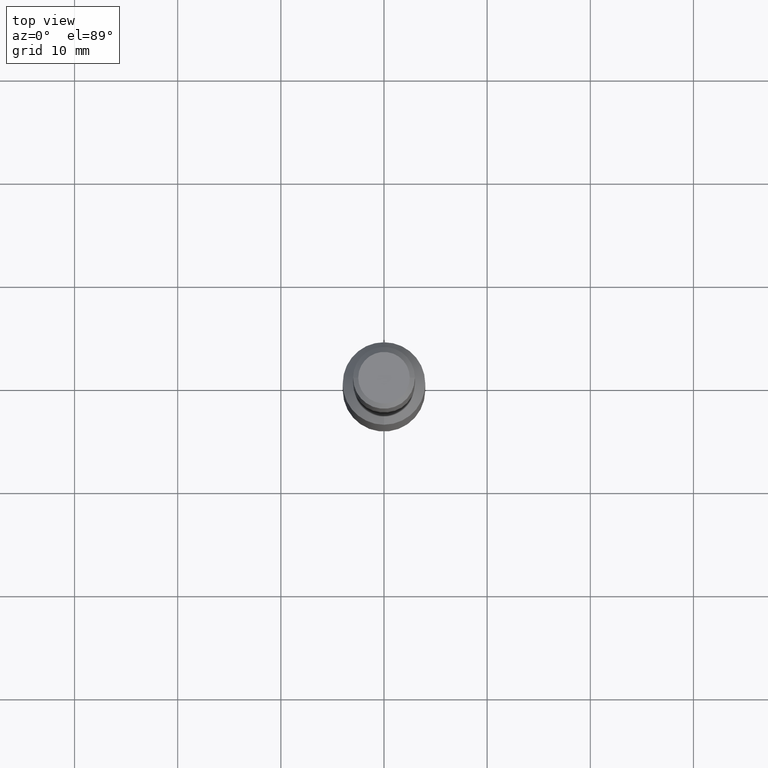
[diagram: clean part render]
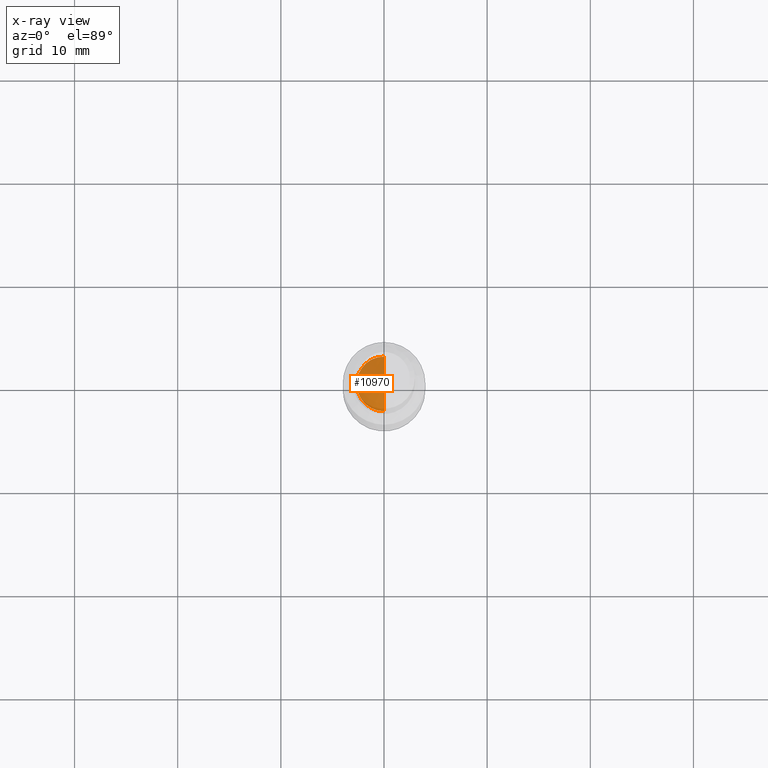
[diagram: x-ray — body ghosted, one internal face saturated and labeled with its STEP entity id]
A machine part, top view, then the same camera in x-ray: the body is ghosted and one INTERNAL B-rep face — a face not visible from any outside direction — is saturated and labeled: STEP entity #10970.
In plain terms, the highlighted conical surface has half-angle 59 deg.
Its self-contained STEP definition (entity closure, byte-faithful):
#110 = VECTOR ( 'NONE', #9115, 1000.000000000000000 ) ;
#284 = LINE ( 'NONE', #13341, #110 ) ;
#1546 = CARTESIAN_POINT ( 'NONE',  ( 3.245314017740480500E-016, -2.649999999999995500, 35.00000000000000000 ) ) ;
#1581 = VERTEX_POINT ( 'NONE', #4624 ) ;
#2725 = CONICAL_SURFACE ( 'NONE', #13462, 2.649999999999995500, 1.029744258676649900 ) ;
#2937 = DIRECTION ( 'NONE',  ( 0.0000000000000000000, 1.000000000000000000, 0.0000000000000000000 ) ) ;
#2945 = AXIS2_PLACEMENT_3D ( 'NONE', #9286, #6102, #7169 ) ;
#4385 = VERTEX_POINT ( 'NONE', #7439 ) ;
#4445 = VERTEX_POINT ( 'NONE', #8588 ) ;
#4624 = CARTESIAN_POINT ( 'NONE',  ( 0.0000000000000000000, -1.962725339329641300E-018, 36.59228064042305600 ) ) ;
#5629 = EDGE_CURVE ( 'NONE', #1581, #4385, #284, .T. ) ;
#5688 = DIRECTION ( 'NONE',  ( 1.049727191138615700E-016, -0.8571673007021098900, -0.5150380749100581500 ) ) ;
#6057 = EDGE_LOOP ( 'NONE', ( #11978, #6393, #9090 ) ) ;
#6102 = DIRECTION ( 'NONE',  ( -0.0000000000000000000, -5.363768819485501700E-020, 1.000000000000000000 ) ) ;
#6393 = ORIENTED_EDGE ( 'NONE', *, *, #12688, .T. ) ;
#7169 = DIRECTION ( 'NONE',  ( 0.0000000000000000000, -1.000000000000000000, 0.0000000000000000000 ) ) ;
#7428 = CIRCLE ( 'NONE', #2945, 2.649999999999995500 ) ;
#7439 = CARTESIAN_POINT ( 'NONE',  ( 3.245314017740482000E-016, 2.649999999999995500, 35.00000000000000000 ) ) ;
#8074 = EDGE_CURVE ( 'NONE', #4385, #4445, #7428, .T. ) ;
#8132 = DIRECTION ( 'NONE',  ( 0.0000000000000000000, 5.363768819485501700E-020, -1.000000000000000000 ) ) ;
#8588 = CARTESIAN_POINT ( 'NONE',  ( 0.0000000000000000000, -2.649999999999995500, 35.00000000000000000 ) ) ;
#8666 = FACE_OUTER_BOUND ( 'NONE', #6057, .T. ) ;
#9090 = ORIENTED_EDGE ( 'NONE', *, *, #8074, .F. ) ;
#9115 = DIRECTION ( 'NONE',  ( 0.0000000000000000000, 0.8571673007021098900, -0.5150380749100581500 ) ) ;
#9286 = CARTESIAN_POINT ( 'NONE',  ( 0.0000000000000000000, -1.877319086819925800E-018, 35.00000000000000000 ) ) ;
#9484 = VECTOR ( 'NONE', #5688, 1000.000000000000000 ) ;
#10970 = ADVANCED_FACE ( 'NONE', ( #8666 ), #2725, .F. ) ;
#11978 = ORIENTED_EDGE ( 'NONE', *, *, #5629, .F. ) ;
#12493 = CARTESIAN_POINT ( 'NONE',  ( 0.0000000000000000000, -1.877319086819925800E-018, 35.00000000000000000 ) ) ;
#12632 = LINE ( 'NONE', #1546, #9484 ) ;
#12688 = EDGE_CURVE ( 'NONE', #1581, #4445, #12632, .T. ) ;
#13341 = CARTESIAN_POINT ( 'NONE',  ( 0.0000000000000000000, 2.649999999999995500, 35.00000000000000000 ) ) ;
#13462 = AXIS2_PLACEMENT_3D ( 'NONE', #12493, #8132, #2937 ) ;